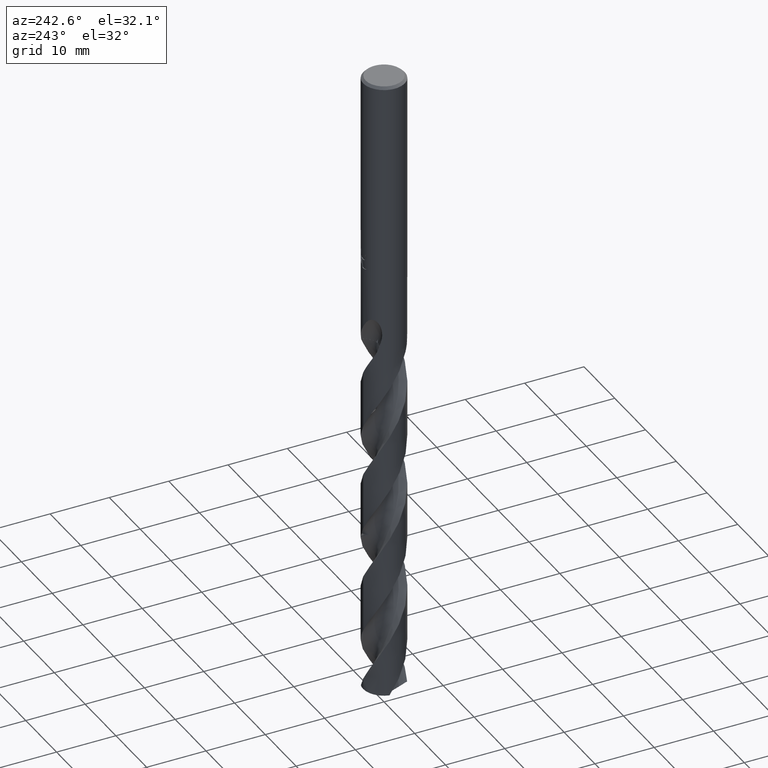
[diagram: clean part render]
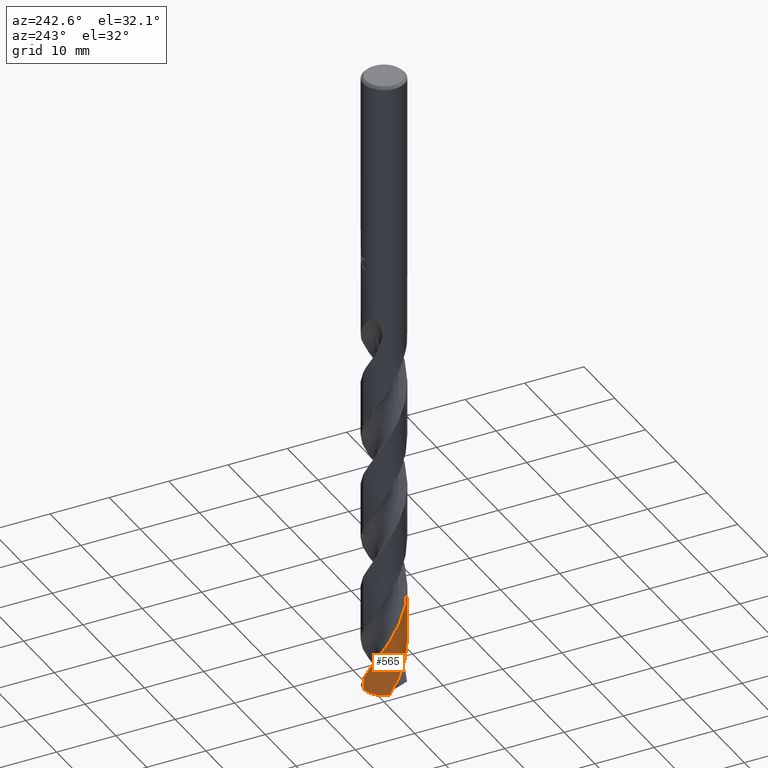
[diagram: same view with one face highlighted and labeled with its STEP entity id]
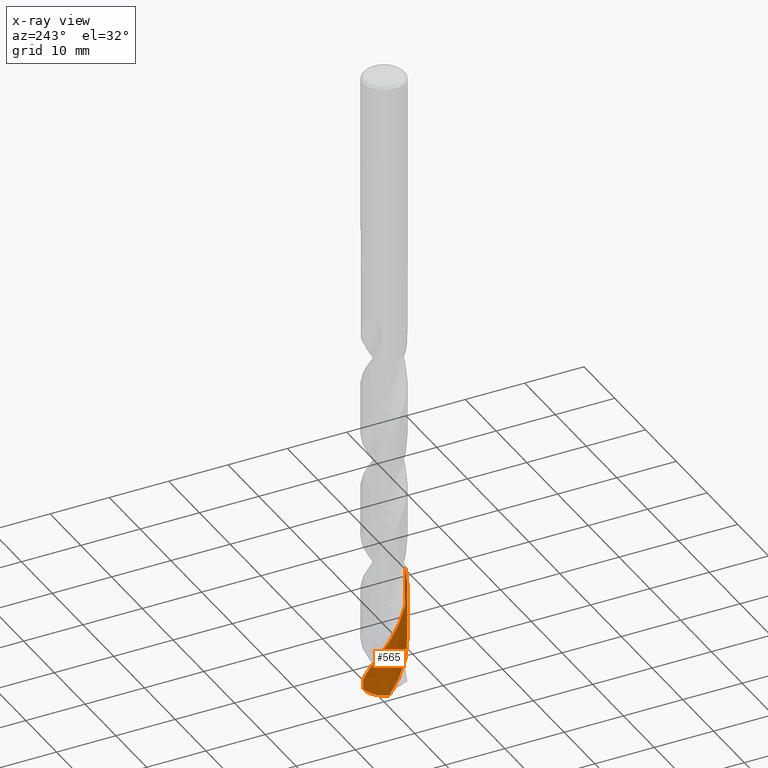
[diagram: x-ray of the same camera — body ghosted, the highlighted face saturated]
A machine part, auxiliary view. The second image highlights one B-rep face of the part: STEP entity #565.
The next image is the same camera in x-ray: the body ghosted, the highlighted face saturated — about 0% of this face is hidden behind the body in this view.
In plain terms, the highlighted conical surface has half-angle 0 deg.
Its self-contained STEP definition (entity closure, byte-faithful):
#275=VERTEX_POINT('',#774);
#301=EDGE_CURVE('',#601,#275,#804,.T.);
#343=EDGE_CURVE('',#669,#649,#850,.T.);
#479=VERTEX_POINT('',#996);
#523=EDGE_CURVE('',#275,#649,#1041,.T.);
#565=ADVANCED_FACE('',(#1089),#1090,.T.);
#569=EDGE_CURVE('',#669,#479,#1095,.T.);
#601=VERTEX_POINT('',#1130);
#609=EDGE_CURVE('',#479,#601,#1139,.T.);
#649=VERTEX_POINT('',#1182);
#669=VERTEX_POINT('',#1204);
#774=CARTESIAN_POINT('',(-2.99682809664266E-014,3.49999691748177,-105.507070960185));
#804=B_SPLINE_CURVE_WITH_KNOTS('',3,(#1402,#1403,#1404,#1405,#1406,#1407,#1408,#1409,#1410,#1411,#1412,#1413,#1414,#1415,#1416,#1417,#1418,#1419,#1420,#1421,#1422,#1423,#1424,#1425,#1426,#1427,#1428,#1429,#1430,#1431,#1432,#1433,#1434,#1435,#1436,#1437,#1438,#1439,#1440,#1441,#1442,#1443,#1444,#1445,#1446,#1447,#1448,#1449,#1450,#1451,#1452,#1453,#1454,#1455,#1456,#1457,#1458,#1459,#1460,#1461,#1462,#1463,#1464,#1465,#1466,#1467,#1468,#1469,#1470,#1471,#1472,#1473,#1474,#1475,#1476,#1477,#1478,#1479,#1480,#1481,#1482,#1483,#1484,#1485,#1486,#1487,#1488,#1489,#1490,#1491,#1492,#1493,#1494,#1495,#1496,#1497,#1498,#1499,#1500,#1501,#1502,#1503,#1504,#1505,#1506,#1507,#1508,#1509,#1510,#1511,#1512,#1513,#1514,#1515,#1516,#1517,#1518,#1519,#1520,#1521,#1522,#1523,#1524,#1525,#1526,#1527,#1528,#1529,#1530,#1531,#1532,#1533,#1534,#1535,#1536,#1537,#1538,#1539,#1540,#1541,#1542,#1543,#1544,#1545,#1546,#1547,#1548,#1549,#1550,#1551,#1552,#1553,#1554,#1555,#1556,#1557,#1558,#1559),.UNSPECIFIED.,.F.,.F.,(4,2,2,2,2,2,2,2,2,2,2,2,2,2,2,2,2,2,2,2,2,2,2,2,2,2,2,2,2,2,2,2,2,2,2,2,2,2,2,2,2,2,2,2,2,2,2,2,2,2,2,2,2,2,2,2,2,2,2,2,2,2,2,2,2,2,2,2,2,2,2,2,2,2,2,2,2,2,4),(0.0,0.176609316926663,0.265826449863781,0.287732096883078,0.295246025381751,0.297832389122097,0.748635996142595,0.850870024852811,0.906132338059783,0.952146213563007,1.00624038974024,1.10313482850195,1.24015184863494,1.83905352850155,2.23477228542097,2.91002744555031,3.95445500991877,4.90333929399131,6.56132220216766,6.86253536999174,7.95087748840297,8.56568997619108,9.20410350382398,10.3098490203453,11.5326665739119,12.9685297437833,13.6679877447477,14.942579914653,15.9480941437193,17.322239772738,18.6019281533231,19.8101227879128,20.3910336217104,21.7780623611892,22.5443406375124,23.6948226211038,24.909628714151,26.4557087447816,27.0444736021305,28.418195188719,29.6975743931002,30.905350072193,31.4855974159311,32.8593577712004,34.1384840693695,35.3461507923308,35.9269610594751,37.3132195087323,38.079654676521,39.2313860247541,40.4453982962802,41.9947189014069,42.5800671673341,43.9573265256849,44.7374896971567,46.0110396881883,47.0160187654404,48.3893692117977,49.6677807838233,50.874756502818,51.4555287604779,52.8406433660344,53.607450803357,54.7600043100985,55.9731355798617,57.5258112977331,58.1075849026777,59.4869854656979,60.2614689432824,61.5366691099609,62.47795766196,63.6252299229612,65.0023165140634,66.0341599681574,66.4239163787646,66.7624557366464,67.9559910168167,68.5540472675219,69.151673641798),.UNSPECIFIED.);
#850=CIRCLE('',#2072,3.5);
#996=CARTESIAN_POINT('',(3.35209978136638E-014,-3.49998279099656,-96.9792052148506));
#1041=LINE('',#4241,#4242);
#1089=FACE_OUTER_BOUND('',#5419,.T.);
#1090=CONICAL_SURFACE('',#5420,3.49995,1.65650886605269E-006);
#1095=B_SPLINE_CURVE_WITH_KNOTS('',3,(#6536,#6537,#6538,#6539,#6540,#6541,#6542,#6543,#6544,#6545,#6546,#6547,#6548,#6549,#6550,#6551,#6552,#6553,#6554,#6555,#6556,#6557,#6558,#6559,#6560,#6561,#6562,#6563,#6564,#6565,#6566,#6567,#6568,#6569,#6570,#6571,#6572,#6573,#6574,#6575,#6576,#6577,#6578,#6579,#6580,#6581,#6582,#6583,#6584,#6585,#6586,#6587,#6588,#6589,#6590,#6591,#6592,#6593,#6594,#6595,#6596,#6597,#6598,#6599,#6600,#6601,#6602,#6603,#6604,#6605,#6606,#6607,#6608,#6609,#6610,#6611,#6612,#6613,#6614,#6615,#6616,#6617,#6618,#6619,#6620,#6621,#6622,#6623,#6624,#6625,#6626,#6627,#6628,#6629,#6630,#6631,#6632,#6633,#6634,#6635,#6636,#6637,#6638,#6639,#6640,#6641,#6642,#6643,#6644,#6645,#6646,#6647,#6648,#6649,#6650,#6651,#6652,#6653,#6654,#6655,#6656,#6657,#6658,#6659,#6660,#6661,#6662,#6663,#6664,#6665,#6666,#6667,#6668,#6669,#6670,#6671,#6672,#6673,#6674,#6675,#6676,#6677,#6678,#6679,#6680,#6681,#6682,#6683,#6684,#6685,#6686,#6687,#6688,#6689,#6690,#6691,#6692,#6693),.UNSPECIFIED.,.F.,.F.,(4,2,2,2,2,2,2,2,2,2,2,2,2,2,2,2,2,2,2,2,2,2,2,2,2,2,2,2,2,2,2,2,2,2,2,2,2,2,2,2,2,2,2,2,2,2,2,2,2,2,2,2,2,2,2,2,2,2,2,2,2,2,2,2,2,2,2,2,2,2,2,2,2,2,2,2,2,2,4),(0.0,1.0729747534753,2.06550703458333,2.99060470507906,4.07755388974103,4.57572588460518,5.08493819660941,6.34934700486859,6.85291872709604,7.36150308372712,8.61578199364693,9.18387093798603,9.6696701560792,10.8977549724562,11.4661788351429,11.8722673361975,13.0138373244991,13.5837754011928,14.6966875326403,15.8281816836288,16.9438145502105,18.0744753583089,19.1924643879638,20.3224456316993,21.4425347681822,22.5718659984719,23.6941018189933,24.7896931893975,25.694918152147,27.6430675380824,27.7148037708729,29.9311885760974,30.0777273554873,32.2326253369752,32.304052077461,34.139069485623,35.252916373007,36.3850599767046,37.5012127247409,38.632445569249,39.7508974302397,40.8813076991589,42.0022337757277,43.1321395726282,44.2551259196361,45.3846148181381,46.4969600007036,47.6256998566319,48.7078759811261,49.8353421560675,50.3090950255672,50.6843355838934,51.8570482457353,52.4024835992924,53.5259668051118,54.6226698004783,55.7418933623857,56.87461318336,57.9962755808735,59.1283048382072,60.2524780945273,61.384463770395,62.4473858363158,63.3460730577302,63.8729216344041,64.4331540905821,65.9270754869475,66.5112275463982,66.5683897277162,68.014344525575,69.0617836937172,69.8356394081176,70.0040234548859,70.0991046168608,70.1844982790915,70.2932798102879,70.5160746211315,70.8127932906479,71.3981418239388),.UNSPECIFIED.);
#1130=CARTESIAN_POINT('',(8.20791188870223E-015,-3.49996705519629,-87.4798293892618));
#1139=LINE('',#7042,#7043);
#1182=CARTESIAN_POINT('',(-4.28608190431857E-016,3.5,-107.367923196458));
#1204=CARTESIAN_POINT('',(-3.40046126641331,0.828772089070823,-107.367923196458));
#1402=CARTESIAN_POINT('',(2.43269998356806,-2.51620167274488,-47.005));
#1403=CARTESIAN_POINT('',(2.41175347688245,-2.53645317467943,-47.05615438025));
#1404=CARTESIAN_POINT('',(2.39047482510026,-2.55652070581089,-47.107390938853));
#1405=CARTESIAN_POINT('',(2.3578538654441,-2.58651280443018,-47.1844360547811));
#1406=CARTESIAN_POINT('',(2.34681818953546,-2.59653054946799,-47.2102522747927));
#1407=CARTESIAN_POINT('',(2.33293330224379,-2.60897269737539,-47.2423965895558));
#1408=CARTESIAN_POINT('',(2.33019013834633,-2.61142305416594,-47.2487310341556));
#1409=CARTESIAN_POINT('',(2.3264973807478,-2.61471117427799,-47.257236237364));
#1410=CARTESIAN_POINT('',(2.32555349647858,-2.61555071632344,-47.2594082784105));
#1411=CARTESIAN_POINT('',(2.32428371108556,-2.61667890107189,-47.2623276746248));
#1412=CARTESIAN_POINT('',(2.32395847161163,-2.61696776287071,-47.2630752120951));
#1413=CARTESIAN_POINT('',(2.26692843851847,-2.66760002990281,-47.3941140756171));
#1414=CARTESIAN_POINT('',(2.20912034680822,-2.71574293500351,-47.5198448297939));
#1415=CARTESIAN_POINT('',(2.13304393881753,-2.77484207646534,-47.6768906581468));
#1416=CARTESIAN_POINT('',(2.11886076568147,-2.78568817991875,-47.7058459460989));
#1417=CARTESIAN_POINT('',(2.09679386019646,-2.80229515317817,-47.7504481469818));
#1418=CARTESIAN_POINT('',(2.08901674078399,-2.80809764982197,-47.7660834239046));
#1419=CARTESIAN_POINT('',(2.07469638814615,-2.81868934291487,-47.7947307043606));
#1420=CARTESIAN_POINT('',(2.06816739661095,-2.82348344275654,-47.8077379843863));
#1421=CARTESIAN_POINT('',(2.05391097158534,-2.83387549176226,-47.836031871849));
#1422=CARTESIAN_POINT('',(2.04617811526592,-2.83946407141532,-47.8513102918116));
#1423=CARTESIAN_POINT('',(2.02450869810216,-2.85498993940883,-47.8939524316208));
#1424=CARTESIAN_POINT('',(2.01052000136903,-2.86485838418326,-47.9212830626485));
#1425=CARTESIAN_POINT('',(1.97654844562087,-2.8884519527363,-47.9872868859139));
#1426=CARTESIAN_POINT('',(1.95665480726785,-2.90196895144987,-48.0257169157841));
#1427=CARTESIAN_POINT('',(1.84615284411223,-2.9753465508225,-48.2386477458612));
#1428=CARTESIAN_POINT('',(1.75409397097925,-3.03047963892969,-48.4132887177858));
#1429=CARTESIAN_POINT('',(1.59843739617963,-3.11436458084004,-48.7027972768224));
#1430=CARTESIAN_POINT('',(1.53559445431193,-3.14582173469821,-48.818198443926));
#1431=CARTESIAN_POINT('',(1.36330162132609,-3.22568907938878,-49.1302916242725));
#1432=CARTESIAN_POINT('',(1.25213737192952,-3.27044814938928,-49.327226954094));
#1433=CARTESIAN_POINT('',(0.963644598528421,-3.36972652211611,-49.8282486305023));
#1434=CARTESIAN_POINT('',(0.783862315369136,-3.41604184797758,-50.1307229063989));
#1435=CARTESIAN_POINT('',(0.434911311640952,-3.4768702942198,-50.7107712152134));
#1436=CARTESIAN_POINT('',(0.267091585011552,-3.4937546579349,-50.9870985012382));
#1437=CARTESIAN_POINT('',(-0.194999188065383,-3.5068179539566,-51.7459932578118));
#1438=CARTESIAN_POINT('',(-0.488883730463891,-3.47806850215696,-52.2253165607593));
#1439=CARTESIAN_POINT('',(-0.827987932493382,-3.40097952312392,-52.7953928817668));
#1440=CARTESIAN_POINT('',(-0.879829706642591,-3.38793796102876,-52.8830268438924));
#1441=CARTESIAN_POINT('',(-1.11746532880351,-3.32233743611997,-53.2874416873319));
#1442=CARTESIAN_POINT('',(-1.29906371758386,-3.25562952323991,-53.6039658988687));
#1443=CARTESIAN_POINT('',(-1.57322636447787,-3.12829804378747,-54.099610544085));
#1444=CARTESIAN_POINT('',(-1.67001880466438,-3.07771713542515,-54.2783821390642));
#1445=CARTESIAN_POINT('',(-1.8622312310587,-2.96552481956121,-54.6430098474513));
#1446=CARTESIAN_POINT('',(-1.95727487669982,-2.90367080689333,-54.8285321927604));
#1447=CARTESIAN_POINT('',(-2.20822752985226,-2.722433002717,-55.3361686872253));
#1448=CARTESIAN_POINT('',(-2.35740615639028,-2.59433467541967,-55.6577161915328));
#1449=CARTESIAN_POINT('',(-2.64730887166533,-2.29962862384781,-56.3354163563452));
#1450=CARTESIAN_POINT('',(-2.78478131196118,-2.13107819413562,-56.6900563751567));
#1451=CARTESIAN_POINT('',(-3.04777588430035,-1.73937053046195,-57.4639872503842));
#1452=CARTESIAN_POINT('',(-3.16634610528924,-1.51284895323148,-57.8809129383345));
#1453=CARTESIAN_POINT('',(-3.30454312696064,-1.15968121441429,-58.5023319873759));
#1454=CARTESIAN_POINT('',(-3.34360391687266,-1.04171109109322,-58.7056200803981));
#1455=CARTESIAN_POINT('',(-3.4359029770547,-0.703701085668556,-59.2802907147899));
#1456=CARTESIAN_POINT('',(-3.4742154404806,-0.480120355604696,-59.650775331091));
#1457=CARTESIAN_POINT('',(-3.5036454119111,-0.076246255625887,-60.314445091727));
#1458=CARTESIAN_POINT('',(-3.50297014933009,0.10253288696561,-60.6063867862237));
#1459=CARTESIAN_POINT('',(-3.4691261872075,0.52356716182228,-61.299223458668));
#1460=CARTESIAN_POINT('',(-3.42421164174468,0.764085692848871,-61.6984599660653));
#1461=CARTESIAN_POINT('',(-3.28978496756385,1.21592207018882,-62.4709505739582));
#1462=CARTESIAN_POINT('',(-3.20391503818943,1.42688651298086,-62.84260130002));
#1463=CARTESIAN_POINT('',(-2.99851353389325,1.81780029457644,-63.5670058073903));
#1464=CARTESIAN_POINT('',(-2.88148588486522,1.9981496640603,-63.9179199770464));
#1465=CARTESIAN_POINT('',(-2.68472772824836,2.24775195263002,-64.4386827046942));
#1466=CARTESIAN_POINT('',(-2.61731528143732,2.32589740417366,-64.6076648629648));
#1467=CARTESIAN_POINT('',(-2.3776715210047,2.5800799633752,-65.1806759255174));
#1468=CARTESIAN_POINT('',(-2.19026301352931,2.74098147357044,-65.5836565270381));
#1469=CARTESIAN_POINT('',(-1.87538629411706,2.95820558558202,-66.2104969727266));
#1470=CARTESIAN_POINT('',(-1.75895992702186,3.028876852505,-66.4332098078752));
#1471=CARTESIAN_POINT('',(-1.45825462167616,3.18822038284473,-66.9913595554466));
#1472=CARTESIAN_POINT('',(-1.26969038154758,3.26790218095409,-67.3260043307407));
#1473=CARTESIAN_POINT('',(-0.869864133779211,3.39697559587282,-68.0146878449632));
#1474=CARTESIAN_POINT('',(-0.658885616243165,3.44411559283237,-68.3672071745159));
#1475=CARTESIAN_POINT('',(-0.172704556552627,3.50643305526346,-69.1712700720918));
#1476=CARTESIAN_POINT('',(0.102840835739819,3.50919630297531,-69.6200630074054));
#1477=CARTESIAN_POINT('',(0.479986265425725,3.46844742298674,-70.2416122526739));
#1478=CARTESIAN_POINT('',(0.583399082682803,3.45255641455586,-70.4129109705978));
#1479=CARTESIAN_POINT('',(0.925100432627419,3.38426699062531,-70.9844745481023));
#1480=CARTESIAN_POINT('',(1.15873349083519,3.31157122071092,-71.3837200675541));
#1481=CARTESIAN_POINT('',(1.5918038195556,3.12528938315728,-72.1562495499109));
#1482=CARTESIAN_POINT('',(1.79131530536579,3.01535883332884,-72.5279281808052));
#1483=CARTESIAN_POINT('',(2.15558174975105,2.76569350445841,-73.25235388832));
#1484=CARTESIAN_POINT('',(2.32102764783411,2.62840357606521,-73.6032586125341));
#1485=CARTESIAN_POINT('',(2.54588194666942,2.40389936476701,-74.1238742046189));
#1486=CARTESIAN_POINT('',(2.61556564982836,2.32788520121504,-74.2927162002394));
#1487=CARTESIAN_POINT('',(2.83852458757351,2.06201614831213,-74.8618564454256));
#1488=CARTESIAN_POINT('',(2.97536688240062,1.85914433862597,-75.2611430836804));
#1489=CARTESIAN_POINT('',(3.19675969782657,1.44292547234908,-76.0336725773874));
#1490=CARTESIAN_POINT('',(3.28366327384874,1.2323907131839,-76.4053116092181));
#1491=CARTESIAN_POINT('',(3.41172699606536,0.809787251946069,-77.1296943476647));
#1492=CARTESIAN_POINT('',(3.45495131186082,0.599190743602124,-77.4805986546519));
#1493=CARTESIAN_POINT('',(3.48999522653784,0.283279945339847,-78.0013910612776));
#1494=CARTESIAN_POINT('',(3.49682721620581,0.180277035560825,-78.1704128939822));
#1495=CARTESIAN_POINT('',(3.50452916110446,-0.168967019949118,-78.7434045144671));
#1496=CARTESIAN_POINT('',(3.48397482534999,-0.415079408516671,-79.1463266972789));
#1497=CARTESIAN_POINT('',(3.41215058530251,-0.790861937981426,-79.773244783122));
#1498=CARTESIAN_POINT('',(3.37879974074501,-0.922999199898648,-79.996094160261));
#1499=CARTESIAN_POINT('',(3.27631233370407,-1.24792461820615,-80.5548813756484));
#1500=CARTESIAN_POINT('',(3.1977720171314,-1.4373014598213,-80.8900236854469));
#1501=CARTESIAN_POINT('',(3.00333391699479,-1.81003522858095,-81.5791199949262));
#1502=CARTESIAN_POINT('',(2.88611543035922,-1.99161622493429,-81.9315548719402));
#1503=CARTESIAN_POINT('',(2.58305072147804,-2.37766371426989,-82.7366588962006));
#1504=CARTESIAN_POINT('',(2.38811795266742,-2.57341492983304,-83.186562885871));
#1505=CARTESIAN_POINT('',(2.0905764346557,-2.80892223659709,-83.8083138812943));
#1506=CARTESIAN_POINT('',(2.00618242138963,-2.86980348726449,-83.9786916750636));
#1507=CARTESIAN_POINT('',(1.71464952751831,-3.06097435438539,-84.5505231322313));
#1508=CARTESIAN_POINT('',(1.49647936202087,-3.17336273333085,-84.9509494866197));
#1509=CARTESIAN_POINT('',(1.13903033585553,-3.31233922119402,-85.5794014496881));
#1510=CARTESIAN_POINT('',(1.00694338156257,-3.35485122479788,-85.8062869304165));
#1511=CARTESIAN_POINT('',(0.653599041965503,-3.44583229755412,-86.4047074875842));
#1512=CARTESIAN_POINT('',(0.429455397072744,-3.48088841191805,-86.7752354687221));
#1513=CARTESIAN_POINT('',(0.0250926949056284,-3.50443374949443,-87.439065978731));
#1514=CARTESIAN_POINT('',(-0.15373194258615,-3.50114558795219,-87.7311245108847));
#1515=CARTESIAN_POINT('',(-0.574389609364336,-3.46112615192391,-88.4242198593973));
#1516=CARTESIAN_POINT('',(-0.814312414608259,-3.4126685095269,-88.8235961111564));
#1517=CARTESIAN_POINT('',(-1.26419790351148,-3.27158444773189,-89.5962033631635));
#1518=CARTESIAN_POINT('',(-1.47386589656255,-3.18262550678539,-89.9678296789402));
#1519=CARTESIAN_POINT('',(-1.86169528775596,-2.97151150907234,-90.6921835033532));
#1520=CARTESIAN_POINT('',(-2.0402940921161,-2.85185406847183,-91.0430718168951));
#1521=CARTESIAN_POINT('',(-2.28702558980817,-2.65141384148342,-91.5639256254443));
#1522=CARTESIAN_POINT('',(-2.36422494083616,-2.58281009624104,-91.7330250041557));
#1523=CARTESIAN_POINT('',(-2.61482055588383,-2.33946778845435,-92.3059736524018));
#1524=CARTESIAN_POINT('',(-2.77288007090138,-2.14979745063658,-92.7087764602234));
#1525=CARTESIAN_POINT('',(-2.98553058302098,-1.83167583606722,-93.3357997492836));
#1526=CARTESIAN_POINT('',(-3.05459011134388,-1.71402726472118,-93.558874277336));
#1527=CARTESIAN_POINT('',(-3.20980956429552,-1.41029164802391,-94.1183034602082));
#1528=CARTESIAN_POINT('',(-3.28685065393429,-1.22002299591879,-94.4538592309849));
#1529=CARTESIAN_POINT('',(-3.4099206684122,-0.817815778351922,-95.14329990569));
#1530=CARTESIAN_POINT('',(-3.45381215664942,-0.606232880261532,-95.4956661131924));
#1531=CARTESIAN_POINT('',(-3.50886288699133,-0.117828600371385,-96.3019144354499));
#1532=CARTESIAN_POINT('',(-3.50725004035784,0.15917321860205,-96.7530155485879));
#1533=CARTESIAN_POINT('',(-3.46026300923702,0.535883118852211,-97.3750287089953));
#1534=CARTESIAN_POINT('',(-3.44291467929346,0.637899194920225,-97.5444587390086));
#1535=CARTESIAN_POINT('',(-3.36932464856769,0.978593479696359,-98.1161721517307));
#1536=CARTESIAN_POINT('',(-3.29250843205065,1.21222012679559,-98.5174234365886));
#1537=CARTESIAN_POINT('',(-3.13533637796397,1.56158428642754,-99.1451718187012));
#1538=CARTESIAN_POINT('',(-3.07147497204629,1.6837166757926,-99.3705273051739));
#1539=CARTESIAN_POINT('',(-2.88391537019855,1.99607827517154,-99.9680863028812));
#1540=CARTESIAN_POINT('',(-2.74858379295418,2.17868018160877,-100.339286175094));
#1541=CARTESIAN_POINT('',(-2.48423410984124,2.47114055771873,-100.985380996678));
#1542=CARTESIAN_POINT('',(-2.36323857354775,2.58708999098354,-101.259120938727));
#1543=CARTESIAN_POINT('',(-2.07745581843872,2.82413030021888,-101.868073593229));
#1544=CARTESIAN_POINT('',(-1.9093470220944,2.94040354856956,-102.202207156018));
#1545=CARTESIAN_POINT('',(-1.51919104866188,3.16259366222064,-102.938136242875));
#1546=CARTESIAN_POINT('',(-1.29429026583513,3.26108556868357,-103.338074775893));
#1547=CARTESIAN_POINT('',(-0.886262472168351,3.39089044352595,-104.040548286172));
#1548=CARTESIAN_POINT('',(-0.707323083216906,3.43268782118142,-104.341035208153));
#1549=CARTESIAN_POINT('',(-0.457326203208534,3.47068132014631,-104.755484708645));
#1550=CARTESIAN_POINT('',(-0.388485361266927,3.47905994256996,-104.869073026177));
#1551=CARTESIAN_POINT('',(-0.259459320241782,3.49088551882295,-105.081385167011));
#1552=CARTESIAN_POINT('',(-0.199364245836235,3.49483240946281,-105.18003502955));
#1553=CARTESIAN_POINT('',(0.0728955385274002,3.50567017333558,-105.62675206318));
#1554=CARTESIAN_POINT('',(0.28537417906955,3.49480161670668,-105.974377590113));
#1555=CARTESIAN_POINT('',(0.600918363680877,3.44966795301055,-106.496729835104));
#1556=CARTESIAN_POINT('',(0.705521222830904,3.42980451914761,-106.670955391887));
#1557=CARTESIAN_POINT('',(0.912541394369256,3.38061757714145,-107.0195320425));
#1558=CARTESIAN_POINT('',(1.01475689727278,3.35135039850916,-107.19357355965));
#1559=CARTESIAN_POINT('',(1.11544004535039,3.31749807915978,-107.367923196457));
#2072=AXIS2_PLACEMENT_3D('',#8686,#8687,#8688);
#4241=CARTESIAN_POINT('',(-4.28602067400088E-016,3.49995,-77.1839615982287));
#4242=VECTOR('',#8811,1.0);
#5419=EDGE_LOOP('',(#8884,#8885,#8886,#8887,#8888));
#5420=AXIS2_PLACEMENT_3D('',#8889,#8890,#8891);
#6536=CARTESIAN_POINT('',(-3.40046126641331,0.828772089070835,-107.367923196457));
#6537=CARTESIAN_POINT('',(-3.4445188196412,0.648001312451089,-107.062472246311));
#6538=CARTESIAN_POINT('',(-3.47410183273863,0.464085848780753,-106.75534876373));
#6539=CARTESIAN_POINT('',(-3.50263302853682,0.10628598023609,-106.166707220588));
#6540=CARTESIAN_POINT('',(-3.50362041539615,-0.0664797655775174,-105.88507716555));
#6541=CARTESIAN_POINT('',(-3.48087740423879,-0.399187805250465,-105.338797559909));
#6542=CARTESIAN_POINT('',(-3.45886909766887,-0.558566798853191,-105.074417328551));
#6543=CARTESIAN_POINT('',(-3.38742338665682,-0.900525126659705,-104.501309655628));
#6544=CARTESIAN_POINT('',(-3.33392043991377,-1.08197720302197,-104.193210877654));
#6545=CARTESIAN_POINT('',(-3.23480095031346,-1.33922650152277,-103.742069282136));
#6546=CARTESIAN_POINT('',(-3.20069228267282,-1.41880207615884,-103.600377428899));
#6547=CARTESIAN_POINT('',(-3.12592051678198,-1.57682686530446,-103.313431770566));
#6548=CARTESIAN_POINT('',(-3.0851750022468,-1.6551191876493,-103.168060636088));
#6549=CARTESIAN_POINT('',(-2.93323456548253,-1.92197970032525,-102.663277756027));
#6550=CARTESIAN_POINT('',(-2.80715981202644,-2.10190710885472,-102.305833878406));
#6551=CARTESIAN_POINT('',(-2.60810010777401,-2.33567924281958,-101.803378947717));
#6552=CARTESIAN_POINT('',(-2.54898632380798,-2.40004550484232,-101.6603672674));
#6553=CARTESIAN_POINT('',(-2.42559592785314,-2.52471446605418,-101.372488337462));
#6554=CARTESIAN_POINT('',(-2.36134912316614,-2.58489716519766,-101.227516212817));
#6555=CARTESIAN_POINT('',(-2.13119227587064,-2.78477715792808,-100.726507040951));
#6556=CARTESIAN_POINT('',(-1.95435227494282,-2.91165704312205,-100.372363451307));
#6557=CARTESIAN_POINT('',(-1.68150643862302,-3.07118156612178,-99.855163460988));
#6558=CARTESIAN_POINT('',(-1.59449597918567,-3.11723474105061,-99.6940861679254));
#6559=CARTESIAN_POINT('',(-1.42990900389052,-3.19567380363044,-99.3947069532877));
#6560=CARTESIAN_POINT('',(-1.35287503372289,-3.22903780488991,-99.2564259907507));
#6561=CARTESIAN_POINT('',(-1.07699408595906,-3.33692048151911,-98.7697082523074));
#6562=CARTESIAN_POINT('',(-0.872440737242727,-3.39618134645863,-98.4231376607615));
#6563=CARTESIAN_POINT('',(-0.566720188798218,-3.45520249899712,-97.9136183147785));
#6564=CARTESIAN_POINT('',(-0.4693658037528,-3.46976091978869,-97.7525533080904));
#6565=CARTESIAN_POINT('',(-0.301846540072319,-3.48765000118821,-97.4759039646202));
#6566=CARTESIAN_POINT('',(-0.23193966507906,-3.49299226360818,-97.3604315227384));
#6567=CARTESIAN_POINT('',(0.0347444738234411,-3.50534580548187,-96.9214927162337));
#6568=CARTESIAN_POINT('',(0.232189862648574,-3.4978580505274,-96.5994907327807));
#6569=CARTESIAN_POINT('',(0.526224715634216,-3.46160224464485,-96.1148224165837));
#6570=CARTESIAN_POINT('',(0.623499606794009,-3.44540487758026,-95.9535965340624));
#6571=CARTESIAN_POINT('',(0.908071634627373,-3.38559445852232,-95.4767335545491));
#6572=CARTESIAN_POINT('',(1.0927246057211,-3.33059846269576,-95.1601090126503));
#6573=CARTESIAN_POINT('',(1.45447845848681,-3.18946180622969,-94.5240519581862));
#6574=CARTESIAN_POINT('',(1.63050475258106,-3.10315475846946,-94.2050101222081));
#6575=CARTESIAN_POINT('',(1.96380050012097,-2.90353750731271,-93.568090647882));
#6576=CARTESIAN_POINT('',(2.12076742271278,-2.79095731192138,-93.2506217290685));
#6577=CARTESIAN_POINT('',(2.41680499184065,-2.53912465627148,-92.6139077839789));
#6578=CARTESIAN_POINT('',(2.55488404602039,-2.40013108888867,-92.2950739374046));
#6579=CARTESIAN_POINT('',(2.80492756358716,-2.10228053379336,-91.6576682584504));
#6580=CARTESIAN_POINT('',(2.91670312447424,-1.94423976450903,-91.3395072782708));
#6581=CARTESIAN_POINT('',(3.11423050651123,-1.60922131367396,-90.7022814286654));
#6582=CARTESIAN_POINT('',(3.19922238908062,-1.43282257694279,-90.3836268382586));
#6583=CARTESIAN_POINT('',(3.33824948151617,-1.06930889667582,-89.7458425261891));
#6584=CARTESIAN_POINT('',(3.39227141755168,-0.883074531861233,-89.4271007922378));
#6585=CARTESIAN_POINT('',(3.46932688086057,-0.501708638108182,-88.7894953092836));
#6586=CARTESIAN_POINT('',(3.49191609960801,-0.307346187010494,-88.4710462487003));
#6587=CARTESIAN_POINT('',(3.50438934544305,0.0819124900414506,-87.8329348282977));
#6588=CARTESIAN_POINT('',(3.4944657383121,0.275922013119764,-87.5136158627929));
#6589=CARTESIAN_POINT('',(3.44316217881535,0.655960301936706,-86.8850632250659));
#6590=CARTESIAN_POINT('',(3.40261532617749,0.841359575416999,-86.5760909510403));
#6591=CARTESIAN_POINT('',(3.30148870881528,1.17236731572747,-86.0092136629493));
#6592=CARTESIAN_POINT('',(3.24580079495186,1.31867302307435,-85.7518780317937));
#6593=CARTESIAN_POINT('',(3.04044743661597,1.76587111380351,-84.9437868772228));
#6594=CARTESIAN_POINT('',(2.85718956018769,2.04905295880421,-84.4003573297059));
#6595=CARTESIAN_POINT('',(2.62857958052956,2.31094112026725,-83.8282003861773));
#6596=CARTESIAN_POINT('',(2.62042317369789,2.32018568079224,-83.8078974736465));
#6597=CARTESIAN_POINT('',(2.35836076123856,2.61406297613614,-83.1597944466552));
#6598=CARTESIAN_POINT('',(2.05988175359893,2.85514857410502,-82.544164865243));
#6599=CARTESIAN_POINT('',(1.70654217270576,3.05582284449459,-81.8753898426945));
#6600=CARTESIAN_POINT('',(1.68450124489964,3.06802834513035,-81.8338973518085));
#6601=CARTESIAN_POINT('',(1.33527842842534,3.25649968971367,-81.1810897151361));
#6602=CARTESIAN_POINT('',(0.982557675785529,3.3796503124618,-80.5810972387748));
#6603=CARTESIAN_POINT('',(0.605095363682126,3.44727327548172,-79.9499137428579));
#6604=CARTESIAN_POINT('',(0.592989404680471,3.44937631217846,-79.9296784103122));
#6605=CARTESIAN_POINT('',(0.26897975513392,3.5039039950587,-79.3888802706967));
#6606=CARTESIAN_POINT('',(-0.0488122268569485,3.513934640958,-78.8753552676154));
#6607=CARTESIAN_POINT('',(-0.555367479956983,3.46095895669351,-78.040167988757));
#6608=CARTESIAN_POINT('',(-0.744763022377179,3.42521318254037,-77.7234467098403));
#6609=CARTESIAN_POINT('',(-1.11918315423035,3.32195844269989,-77.0872661689349));
#6610=CARTESIAN_POINT('',(-1.30315741127028,3.2541817680861,-76.768202968943));
#6611=CARTESIAN_POINT('',(-1.65519695693608,3.08984794677787,-76.1312723815678));
#6612=CARTESIAN_POINT('',(-1.82288608465432,2.99399004792213,-75.8138119235244));
#6613=CARTESIAN_POINT('',(-2.14320910637176,2.77390535951411,-75.1771082344171));
#6614=CARTESIAN_POINT('',(-2.29482962151186,2.64983283119224,-74.8582746958777));
#6615=CARTESIAN_POINT('',(-2.57412198729707,2.37926176638285,-74.2208941931137));
#6616=CARTESIAN_POINT('',(-2.70152268204253,2.2335595335179,-73.9027536809645));
#6617=CARTESIAN_POINT('',(-2.93238733740955,1.9206546177463,-73.2655931738269));
#6618=CARTESIAN_POINT('',(-3.03503898226082,1.7539472864275,-72.9469781880669));
#6619=CARTESIAN_POINT('',(-3.21069409033937,1.40662382890785,-72.3091653075504));
#6620=CARTESIAN_POINT('',(-3.28358143852549,1.22688017606057,-71.9903560168707));
#6621=CARTESIAN_POINT('',(-3.39941591764355,0.855400564347573,-71.3526812973957));
#6622=CARTESIAN_POINT('',(-3.44185010022319,0.664384431185995,-71.03423383685));
#6623=CARTESIAN_POINT('',(-3.49424425907277,0.278428618732126,-70.3960808004032));
#6624=CARTESIAN_POINT('',(-3.50429904002731,0.0843915229156806,-70.0767196004765));
#6625=CARTESIAN_POINT('',(-3.49210879262716,-0.304696472700921,-69.4386808608551));
#6626=CARTESIAN_POINT('',(-3.46968520376448,-0.498963501692697,-69.1204067377683));
#6627=CARTESIAN_POINT('',(-3.39323979110571,-0.878890113524971,-68.4855409248124));
#6628=CARTESIAN_POINT('',(-3.33989538080954,-1.06374886864491,-68.169274332842));
#6629=CARTESIAN_POINT('',(-3.20237340823277,-1.42560733103717,-67.5346186537494));
#6630=CARTESIAN_POINT('',(-3.11798563748488,-1.60179909231818,-67.2166406352058));
#6631=CARTESIAN_POINT('',(-2.92472000548015,-1.93145669804154,-66.5907732338503));
#6632=CARTESIAN_POINT('',(-2.81746825858033,-2.08477304186665,-66.2832348361563));
#6633=CARTESIAN_POINT('',(-2.57461967062514,-2.37880498175584,-65.6577436415878));
#6634=CARTESIAN_POINT('',(-2.43834702037281,-2.5183188667976,-65.3402623454581));
#6635=CARTESIAN_POINT('',(-2.22918681590507,-2.69943228911601,-64.88728015762));
#6636=CARTESIAN_POINT('',(-2.16551760060399,-2.7507649200228,-64.7533252746675));
#6637=CARTESIAN_POINT('',(-2.04845395249736,-2.8385776140926,-64.5129259943046));
#6638=CARTESIAN_POINT('',(-1.99572864370419,-2.87588957788727,-64.4065258382976));
#6639=CARTESIAN_POINT('',(-1.774059986129,-3.02373188679168,-63.9684775621199));
#6640=CARTESIAN_POINT('',(-1.59648954642599,-3.1211756400303,-63.6385099691546));
#6641=CARTESIAN_POINT('',(-1.32493263651256,-3.24082013015826,-63.1530314418215));
#6642=CARTESIAN_POINT('',(-1.23730338985091,-3.27527229473925,-62.9990572416198));
#6643=CARTESIAN_POINT('',(-0.965504851516179,-3.36968811315185,-62.52717751796));
#6644=CARTESIAN_POINT('',(-0.777507913127695,-3.41797949026736,-62.2082527972342));
#6645=CARTESIAN_POINT('',(-0.399599294338114,-3.48218941031152,-61.5804244721066));
#6646=CARTESIAN_POINT('',(-0.210716582825737,-3.49869490773446,-61.2717616509535));
#6647=CARTESIAN_POINT('',(0.171590225604344,-3.50104306384397,-60.645040585689));
#6648=CARTESIAN_POINT('',(0.364372856720434,-3.48626091426356,-60.3272330862076));
#6649=CARTESIAN_POINT('',(0.748191499634583,-3.42460078174948,-59.6903049939093));
#6650=CARTESIAN_POINT('',(0.938273850855177,-3.37746887487738,-59.3715894758427));
#6651=CARTESIAN_POINT('',(1.30672895541701,-3.25259334972061,-58.7339860341417));
#6652=CARTESIAN_POINT('',(1.48445975577834,-3.17542007941228,-58.4154919381258));
#6653=CARTESIAN_POINT('',(1.82720844404536,-2.99147311379541,-57.778076394732));
#6654=CARTESIAN_POINT('',(1.99132039138654,-2.88482909503199,-57.4595641604579));
#6655=CARTESIAN_POINT('',(2.29896615614172,-2.64609429509738,-56.8215226478356));
#6656=CARTESIAN_POINT('',(2.4419675953471,-2.51472282832886,-56.5023702336291));
#6657=CARTESIAN_POINT('',(2.70581715433823,-2.22847650981855,-55.8643358113082));
#6658=CARTESIAN_POINT('',(2.82594061977707,-2.07403305096086,-55.5458692040473));
#6659=CARTESIAN_POINT('',(3.03267128437327,-1.75668366971766,-54.9252562652008));
#6660=CARTESIAN_POINT('',(3.12044504043303,-1.59555676913061,-54.6234785384822));
#6661=CARTESIAN_POINT('',(3.25846996919563,-1.28676625246305,-54.0688534280867));
#6662=CARTESIAN_POINT('',(3.31229442841318,-1.14113293520991,-53.8156526847898));
#6663=CARTESIAN_POINT('',(3.38210814770439,-0.904986984282309,-53.4129137145621));
#6664=CARTESIAN_POINT('',(3.40447192225738,-0.816820225142546,-53.2641976349087));
#6665=CARTESIAN_POINT('',(3.44345694319209,-0.633485548809749,-52.9568648640424));
#6666=CARTESIAN_POINT('',(3.45959767690879,-0.538357790484649,-52.798131638748));
#6667=CARTESIAN_POINT('',(3.50428063016614,-0.18802005321493,-52.2177750104538));
#6668=CARTESIAN_POINT('',(3.50865013749335,0.0696559369460105,-51.7993049608856));
#6669=CARTESIAN_POINT('',(3.47536452222855,0.425793501998979,-51.2131690440447));
#6670=CARTESIAN_POINT('',(3.46172512365902,0.525166556454068,-51.0485960521929));
#6671=CARTESIAN_POINT('',(3.44217174440734,0.633162089032861,-50.8673198487982));
#6672=CARTESIAN_POINT('',(3.44037646080903,0.642847547001406,-50.851053592863));
#6673=CARTESIAN_POINT('',(3.39171437708867,0.899243253984593,-50.4202553507854));
#6674=CARTESIAN_POINT('',(3.31860007688409,1.14017898554762,-50.0135220983473));
#6675=CARTESIAN_POINT('',(3.14782090444227,1.54078497646541,-49.3064673508271));
#6676=CARTESIAN_POINT('',(3.06396448226858,1.70082935399031,-49.013455943625));
#6677=CARTESIAN_POINT('',(2.90105904203691,1.96221804957489,-48.4966035305838));
#6678=CARTESIAN_POINT('',(2.82743692167657,2.06651960530545,-48.2770167779465));
#6679=CARTESIAN_POINT('',(2.73341572642738,2.18597533312774,-48.0049881292346));
#6680=CARTESIAN_POINT('',(2.72306096708802,2.19881259931671,-47.9746809042244));
#6681=CARTESIAN_POINT('',(2.7003217247595,2.22659853959956,-47.9114103747649));
#6682=CARTESIAN_POINT('',(2.69194659480097,2.2367188648008,-47.8886855175495));
#6683=CARTESIAN_POINT('',(2.6757144020292,2.25610402590649,-47.8457437677441));
#6684=CARTESIAN_POINT('',(2.66789442880332,2.26534745208848,-47.8255150241468));
#6685=CARTESIAN_POINT('',(2.64978368571968,2.28652556915515,-47.7797104856581));
#6686=CARTESIAN_POINT('',(2.63940766352494,2.29849831640076,-47.7541999143656));
#6687=CARTESIAN_POINT('',(2.6070495693641,2.33531261734891,-47.6768719388087));
#6688=CARTESIAN_POINT('',(2.58433545705965,2.36045173214391,-47.6255869459585));
#6689=CARTESIAN_POINT('',(2.52892855879834,2.41991343874384,-47.507395633643));
#6690=CARTESIAN_POINT('',(2.49552143052657,2.45441301319316,-47.4411571720906));
#6691=CARTESIAN_POINT('',(2.39053844394844,2.55816792430302,-47.2474565110551));
#6692=CARTESIAN_POINT('',(2.31413315933726,2.62791629405514,-47.1243868027608));
#6693=CARTESIAN_POINT('',(2.23022149938216,2.69729719009043,-47.005));
#7042=CARTESIAN_POINT('',(4.28610134212038E-016,-3.49995,-77.1839615982287));
#7043=VECTOR('',#8960,1.0);
#8686=CARTESIAN_POINT('',(0.0,0.0,-107.367923196458));
#8687=DIRECTION('',(0.0,0.0,-1.0));
#8688=DIRECTION('',(0.0,1.0,0.0));
#8811=DIRECTION('',(-2.02857128253029E-022,1.65650886605193E-006,-0.999999999998628));
#8884=ORIENTED_EDGE('',*,*,#523,.T.);
#8885=ORIENTED_EDGE('',*,*,#343,.F.);
#8886=ORIENTED_EDGE('',*,*,#569,.T.);
#8887=ORIENTED_EDGE('',*,*,#609,.T.);
#8888=ORIENTED_EDGE('',*,*,#301,.T.);
#8889=CARTESIAN_POINT('',(0.0,0.0,-77.1839615982287));
#8890=DIRECTION('',(0.0,-0.0,-1.0));
#8891=DIRECTION('',(0.0,1.0,0.0));
#8960=DIRECTION('',(-2.02857128253029E-022,1.65650886605193E-006,0.999999999998628));